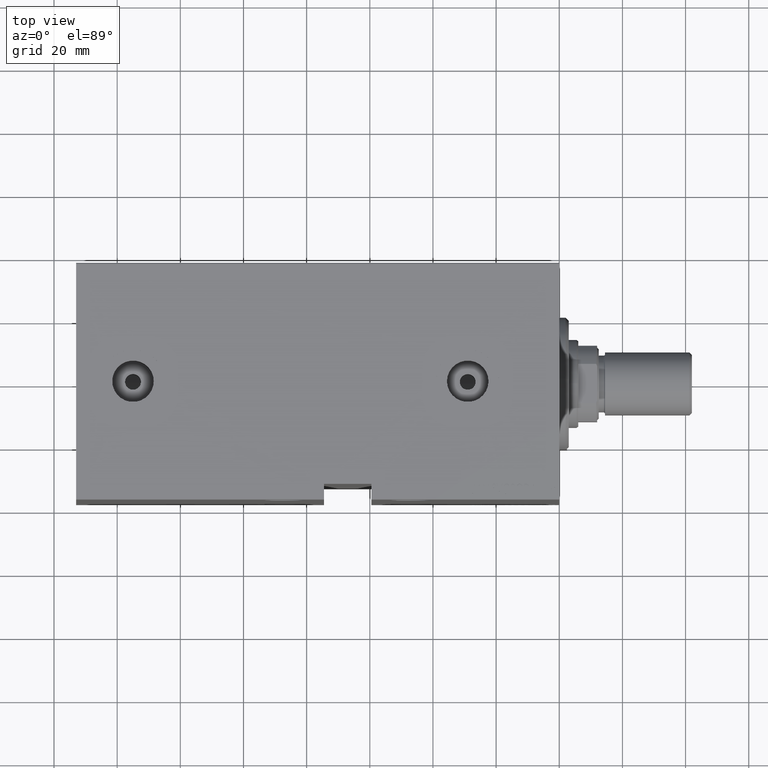
[diagram: clean part render]
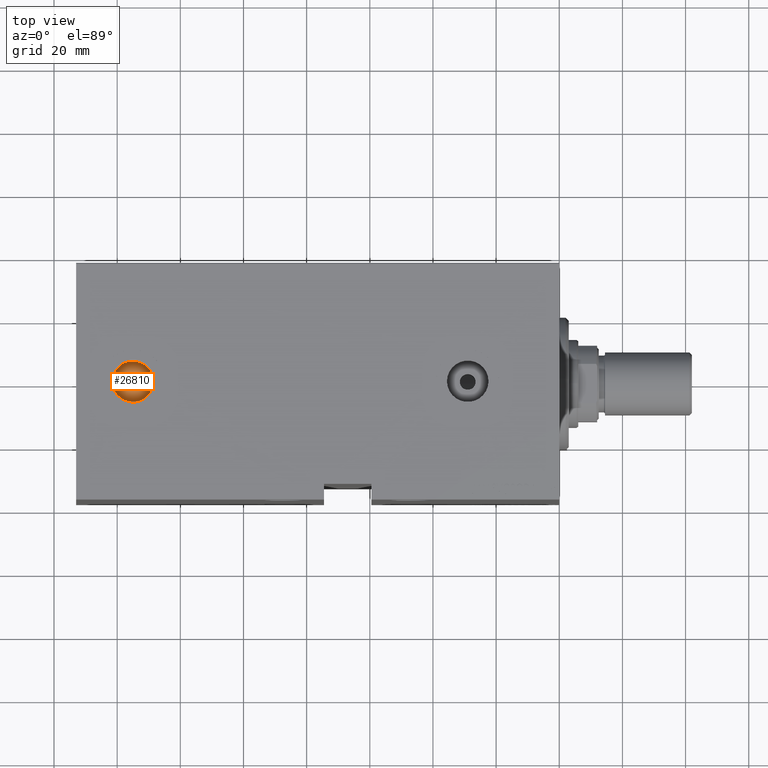
[diagram: same view with one face highlighted and labeled with its STEP entity id]
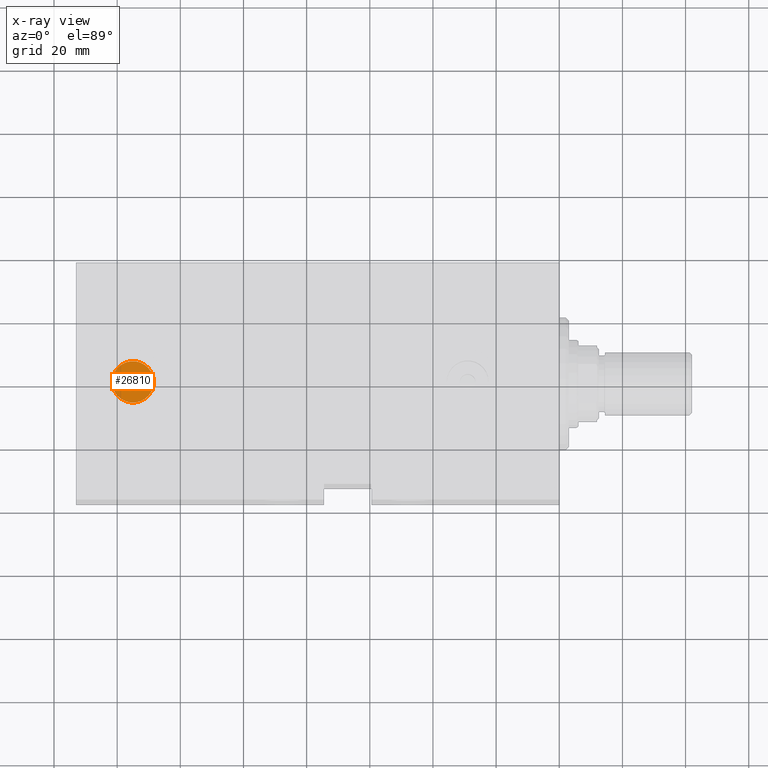
[diagram: x-ray of the same camera — body ghosted, the highlighted face saturated]
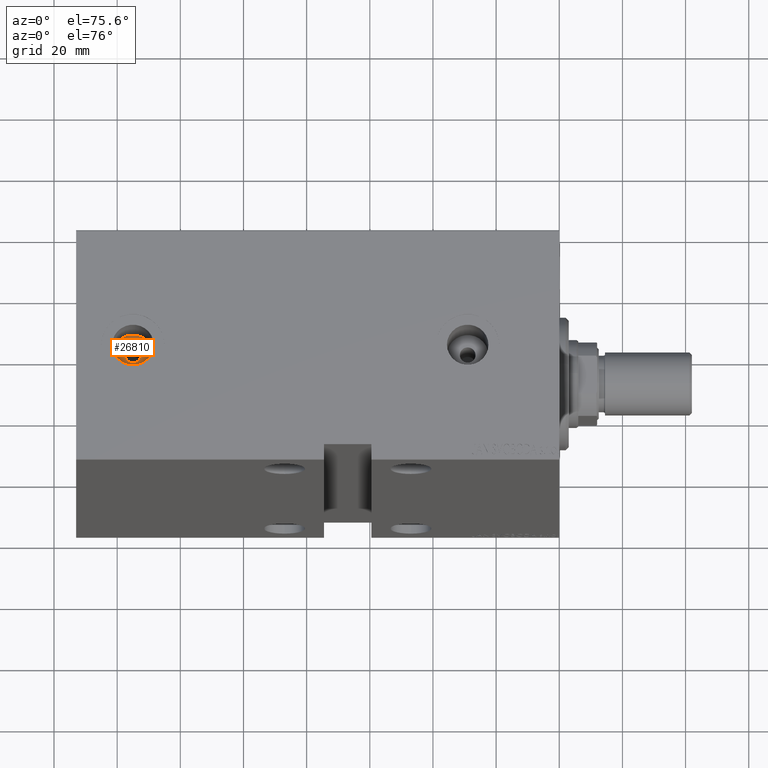
[diagram: same view with one face highlighted and labeled with its STEP entity id]
A machine part, top view. The second image highlights one B-rep face of the part: STEP entity #26810.
The next image is the same camera in x-ray: the body ghosted, the highlighted face saturated — about 0% of this face is hidden behind the body in this view.
A second angle (auxiliary view) of the same face is appended — the face is thin or edge-on in the first view.
In plain terms, the highlighted planar face has unit normal (0, -0, 1).
Its self-contained STEP definition (entity closure, byte-faithful):
#427 = CARTESIAN_POINT ( 'NONE',  ( 141.5800000000000409, 0.000000000000000000, 36.74000000000000199 ) ) ;
#1961 = DIRECTION ( 'NONE',  ( 0.000000000000000000, 0.000000000000000000, 1.000000000000000000 ) ) ;
#2422 = CARTESIAN_POINT ( 'NONE',  ( 135.0000000000000000, 0.000000000000000000, 36.74000000000000199 ) ) ;
#4828 = CARTESIAN_POINT ( 'NONE',  ( 135.0000000000000000, 0.000000000000000000, 36.74000000000000199 ) ) ;
#5419 = CARTESIAN_POINT ( 'NONE',  ( 135.0000000000000000, 0.000000000000000000, 36.74000000000000199 ) ) ;
#6431 = EDGE_CURVE ( 'NONE', #15826, #18865, #7440, .T. ) ;
#7370 = CARTESIAN_POINT ( 'NONE',  ( 132.5000000000000000, 3.061616997868367857E-16, 36.74000000000000199 ) ) ;
#7440 = CIRCLE ( 'NONE', #19595, 2.500000000000002220 ) ;
#8144 = EDGE_CURVE ( 'NONE', #18865, #15826, #41112, .T. ) ;
#9004 = AXIS2_PLACEMENT_3D ( 'NONE', #2422, #9363, #20137 ) ;
#9094 = AXIS2_PLACEMENT_3D ( 'NONE', #21021, #9648, #13854 ) ;
#9363 = DIRECTION ( 'NONE',  ( 0.000000000000000000, 0.000000000000000000, 1.000000000000000000 ) ) ;
#9380 = EDGE_LOOP ( 'NONE', ( #10280, #39447 ) ) ;
#9648 = DIRECTION ( 'NONE',  ( 0.000000000000000000, 0.000000000000000000, 1.000000000000000000 ) ) ;
#10280 = ORIENTED_EDGE ( 'NONE', *, *, #6431, .F. ) ;
#10536 = ORIENTED_EDGE ( 'NONE', *, *, #25174, .T. ) ;
#13854 = DIRECTION ( 'NONE',  ( 1.000000000000000000, 0.000000000000000000, 0.000000000000000000 ) ) ;
#15492 = EDGE_LOOP ( 'NONE', ( #43072, #10536 ) ) ;
#15826 = VERTEX_POINT ( 'NONE', #39018 ) ;
#15934 = DIRECTION ( 'NONE',  ( 1.000000000000000000, 0.000000000000000000, -0.000000000000000000 ) ) ;
#16603 = FACE_BOUND ( 'NONE', #9380, .T. ) ;
#18375 = AXIS2_PLACEMENT_3D ( 'NONE', #5419, #22458, #15934 ) ;
#18865 = VERTEX_POINT ( 'NONE', #7370 ) ;
#19222 = CARTESIAN_POINT ( 'NONE',  ( 135.0000000000000000, 0.000000000000000000, 36.74000000000000199 ) ) ;
#19595 = AXIS2_PLACEMENT_3D ( 'NONE', #4828, #21427, #35100 ) ;
#20137 = DIRECTION ( 'NONE',  ( 1.000000000000000000, 0.000000000000000000, 0.000000000000000000 ) ) ;
#21021 = CARTESIAN_POINT ( 'NONE',  ( 135.0000000000000000, 0.000000000000000000, 36.74000000000000199 ) ) ;
#21427 = DIRECTION ( 'NONE',  ( 0.000000000000000000, 0.000000000000000000, 1.000000000000000000 ) ) ;
#22458 = DIRECTION ( 'NONE',  ( 0.000000000000000000, 0.000000000000000000, 1.000000000000000000 ) ) ;
#22682 = PLANE ( 'NONE',  #18375 ) ;
#23458 = VERTEX_POINT ( 'NONE', #427 ) ;
#25174 = EDGE_CURVE ( 'NONE', #28302, #23458, #36216, .T. ) ;
#26293 = CIRCLE ( 'NONE', #9094, 6.580000000000030269 ) ;
#26806 = AXIS2_PLACEMENT_3D ( 'NONE', #19222, #1961, #39618 ) ;
#26810 = ADVANCED_FACE ( 'NONE', ( #16603, #36135 ), #22682, .T. ) ;
#28302 = VERTEX_POINT ( 'NONE', #40083 ) ;
#32057 = EDGE_CURVE ( 'NONE', #23458, #28302, #26293, .T. ) ;
#35100 = DIRECTION ( 'NONE',  ( 1.000000000000000000, 0.000000000000000000, 0.000000000000000000 ) ) ;
#36135 = FACE_OUTER_BOUND ( 'NONE', #15492, .T. ) ;
#36216 = CIRCLE ( 'NONE', #9004, 6.580000000000030269 ) ;
#39018 = CARTESIAN_POINT ( 'NONE',  ( 137.5000000000000000, 0.000000000000000000, 36.74000000000000199 ) ) ;
#39447 = ORIENTED_EDGE ( 'NONE', *, *, #8144, .F. ) ;
#39618 = DIRECTION ( 'NONE',  ( 1.000000000000000000, 0.000000000000000000, 0.000000000000000000 ) ) ;
#40083 = CARTESIAN_POINT ( 'NONE',  ( 128.4199999999999875, 8.058175938389589433E-16, 36.74000000000000199 ) ) ;
#41112 = CIRCLE ( 'NONE', #26806, 2.500000000000002220 ) ;
#43072 = ORIENTED_EDGE ( 'NONE', *, *, #32057, .T. ) ;